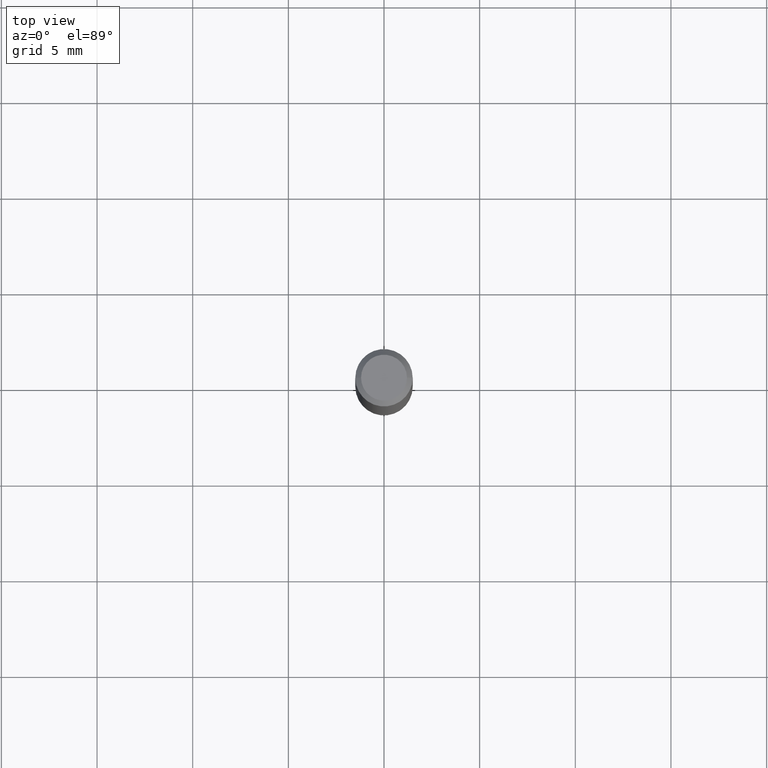
[diagram: clean part render]
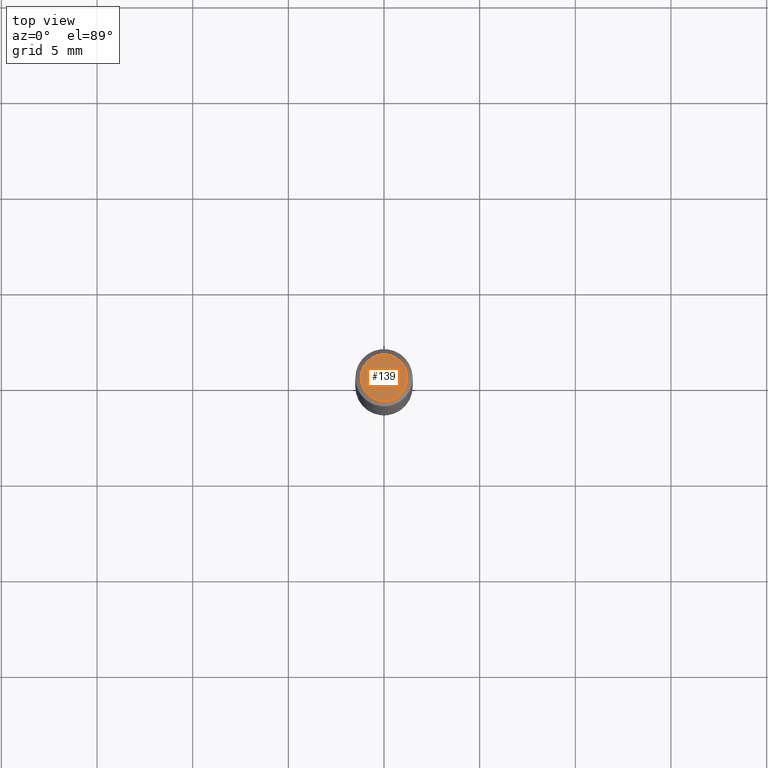
[diagram: same view with one face highlighted and labeled with its STEP entity id]
A machine part, top view. The second image highlights one B-rep face of the part: STEP entity #139.
In plain terms, the highlighted planar face has unit normal (0, -0, -1).
Its self-contained STEP definition (entity closure, byte-faithful):
#29 = AXIS2_PLACEMENT_3D ( 'NONE', #152, #87, #274 ) ;
#66 = DIRECTION ( 'NONE',  ( 2.438088387897960049E-29, -3.491481338843145188E-15, -1.000000000000000000 ) ) ;
#68 = CARTESIAN_POINT ( 'NONE',  ( 8.265746106709734507E-48, -1.180129479067563789E-33, -3.380025165646692144E-19 ) ) ;
#75 = ORIENTED_EDGE ( 'NONE', *, *, #182, .T. ) ;
#87 = DIRECTION ( 'NONE',  ( -2.445468806185136597E-29, 3.491481338843145583E-15, 1.000000000000000000 ) ) ;
#139 = ADVANCED_FACE ( 'NONE', ( #482 ), #143, .F. ) ;
#143 = PLANE ( 'NONE',  #448 ) ;
#152 = CARTESIAN_POINT ( 'NONE',  ( 8.265746106709734507E-48, -1.180129479067563789E-33, -3.380025165646692144E-19 ) ) ;
#154 = CIRCLE ( 'NONE', #29, 0.04724000000000000421 ) ;
#155 = EDGE_CURVE ( 'NONE', #250, #288, #294, .T. ) ;
#182 = EDGE_CURVE ( 'NONE', #288, #250, #154, .T. ) ;
#214 = EDGE_LOOP ( 'NONE', ( #75, #353 ) ) ;
#220 = DIRECTION ( 'NONE',  ( -2.445468806185136597E-29, 3.491481338843145583E-15, 1.000000000000000000 ) ) ;
#227 = CARTESIAN_POINT ( 'NONE',  ( 4.132873053354867254E-48, -5.900647395337818946E-34, -1.690012582823346072E-19 ) ) ;
#250 = VERTEX_POINT ( 'NONE', #418 ) ;
#274 = DIRECTION ( 'NONE',  ( 1.000000000000000000, -6.982962677686266711E-15, 4.876185090822587894E-29 ) ) ;
#287 = AXIS2_PLACEMENT_3D ( 'NONE', #68, #220, #411 ) ;
#288 = VERTEX_POINT ( 'NONE', #355 ) ;
#294 = CIRCLE ( 'NONE', #287, 0.04724000000000000421 ) ;
#353 = ORIENTED_EDGE ( 'NONE', *, *, #155, .T. ) ;
#355 = CARTESIAN_POINT ( 'NONE',  ( -0.04724000000000000421, 3.504923541997677355E-16, -3.380025165670481712E-19 ) ) ;
#371 = DIRECTION ( 'NONE',  ( -1.000000000000000000, 6.982962677686265922E-15, -4.876176775795935793E-29 ) ) ;
#411 = DIRECTION ( 'NONE',  ( 1.000000000000000000, -6.982962677686266711E-15, 4.876185090822587894E-29 ) ) ;
#418 = CARTESIAN_POINT ( 'NONE',  ( 0.04724000000000000421, -3.852183633974369345E-16, -3.380025165621689721E-19 ) ) ;
#448 = AXIS2_PLACEMENT_3D ( 'NONE', #227, #66, #371 ) ;
#482 = FACE_OUTER_BOUND ( 'NONE', #214, .T. ) ;